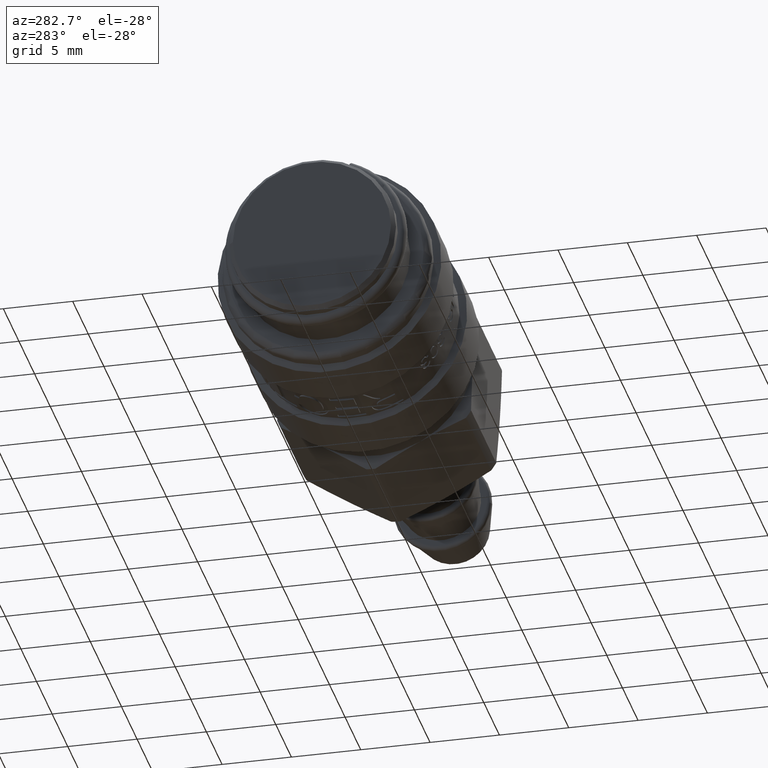
[diagram: clean part render]
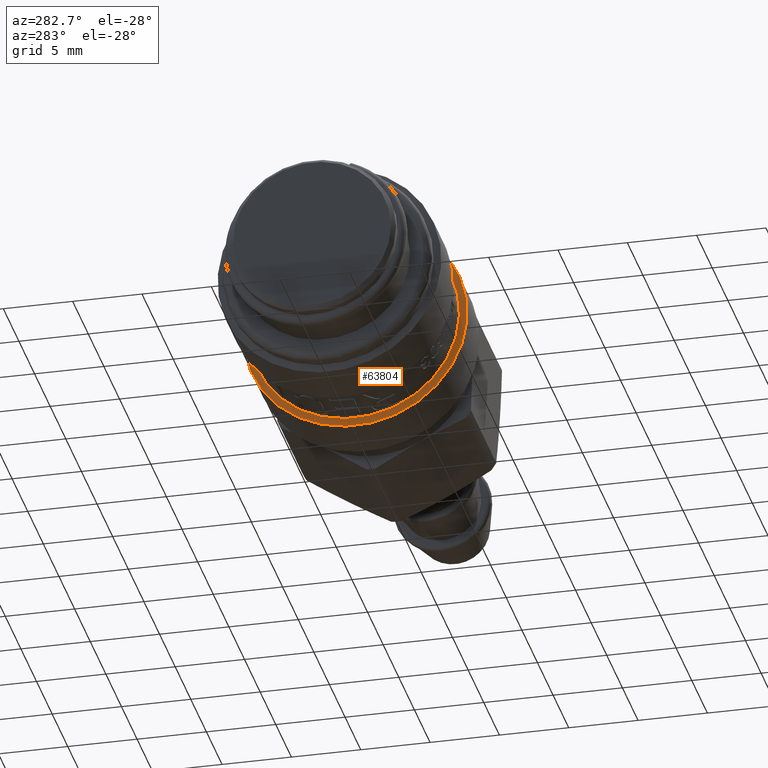
[diagram: same view with one face highlighted and labeled with its STEP entity id]
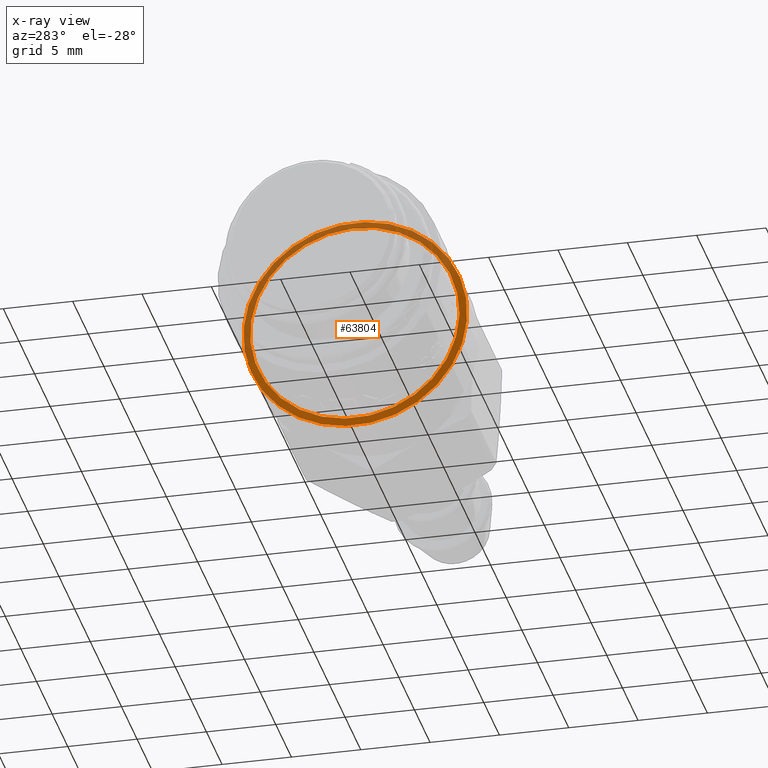
[diagram: x-ray of the same camera — body ghosted, the highlighted face saturated]
A machine part, auxiliary view. The second image highlights one B-rep face of the part: STEP entity #63804.
The next image is the same camera in x-ray: the body ghosted, the highlighted face saturated — about 42% of this face is hidden behind the body in this view.
In plain terms, the highlighted conical surface has half-angle 75 deg.
Its self-contained STEP definition (entity closure, byte-faithful):
#63773=CARTESIAN_POINT('',(13.88067332602634,-1.139941101350958,-7.99413280384125));
#63774=VERTEX_POINT('',#63773);
#63775=CARTESIAN_POINT('',(13.88067332602634,0.0,0.0));
#63776=DIRECTION('',(1.0,0.0,0.0));
#63777=DIRECTION('',(0.0,-0.14116917663789,-0.989985486543808));
#63778=AXIS2_PLACEMENT_3D('',#63775,#63776,#63777);
#63779=CIRCLE('',#63778,8.074999999999999);
#63780=EDGE_CURVE('',#63774,#63774,#63779,.T.);
#63785=CARTESIAN_POINT('',(13.810336663013171,0.0,0.0));
#63786=DIRECTION('',(1.0,0.0,0.0));
#63787=DIRECTION('',(0.0,-0.14116917663789,-0.989985486543808));
#63788=AXIS2_PLACEMENT_3D('',#63785,#63786,#63787);
#63789=CONICAL_SURFACE('',#63788,7.8125,74.999999999999986);
#63790=ORIENTED_EDGE('',*,*,#63780,.F.);
#63791=EDGE_LOOP('',(#63790));
#63792=FACE_OUTER_BOUND('',#63791,.T.);
#63793=CARTESIAN_POINT('',(13.740000000000002,-1.065827283616066,-7.474390423405751));
#63794=VERTEX_POINT('',#63793);
#63795=CARTESIAN_POINT('',(13.740000000000002,0.0,0.0));
#63796=DIRECTION('',(1.0,0.0,0.0));
#63797=DIRECTION('',(0.0,-0.141169176637889,-0.989985486543808));
#63798=AXIS2_PLACEMENT_3D('',#63795,#63796,#63797);
#63799=CIRCLE('',#63798,7.55);
#63800=EDGE_CURVE('',#63794,#63794,#63799,.T.);
#63801=ORIENTED_EDGE('',*,*,#63800,.T.);
#63802=EDGE_LOOP('',(#63801));
#63803=FACE_BOUND('',#63802,.T.);
#63804=ADVANCED_FACE('',(#63792,#63803),#63789,.T.);